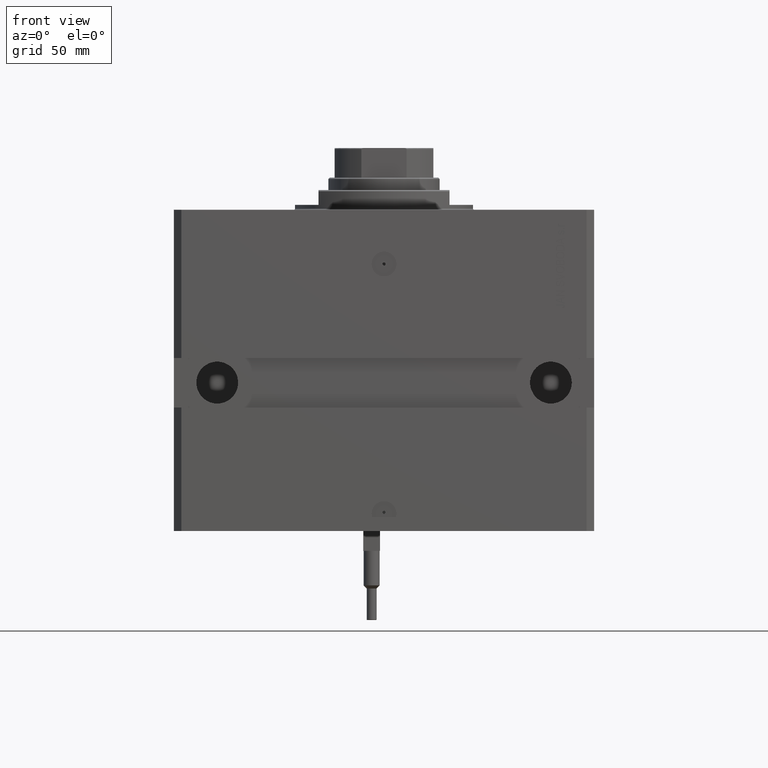
[diagram: clean part render]
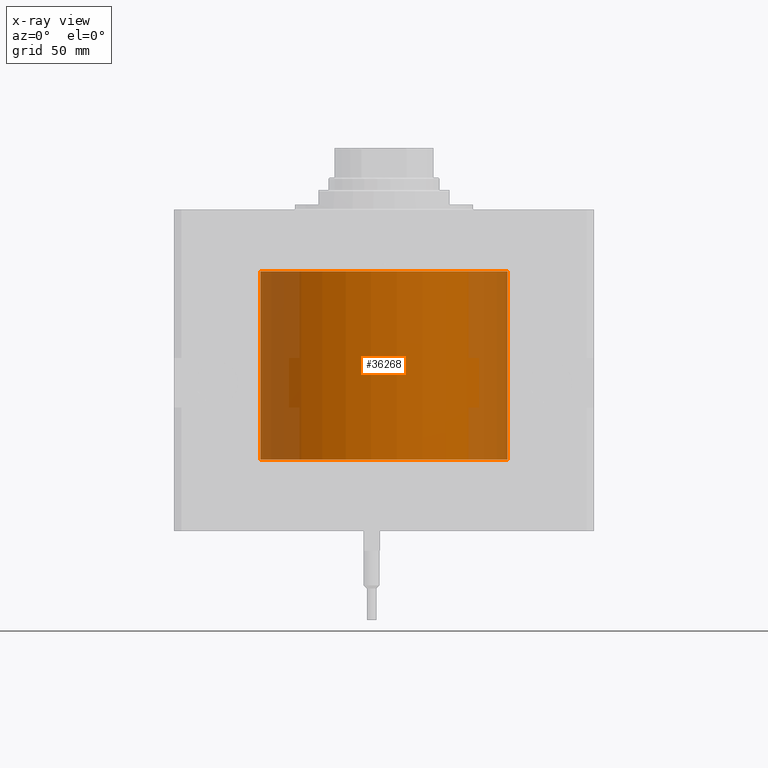
[diagram: x-ray — body ghosted, one internal face saturated and labeled with its STEP entity id]
A machine part, front view, then the same camera in x-ray: the body is ghosted and one INTERNAL B-rep face — a face not visible from any outside direction — is saturated and labeled: STEP entity #36268.
In plain terms, the highlighted cylindrical surface (partial cylindrical patch) has radius 50 mm, axis along (0, 0, 1).
Its self-contained STEP definition (entity closure, byte-faithful):
#328 = CARTESIAN_POINT ( 'NONE',  ( -50.00000000000000000, 6.123233995736764507E-15, -24.99999999999999289 ) ) ;
#1113 = FACE_OUTER_BOUND ( 'NONE', #17800, .T. ) ;
#1618 = CARTESIAN_POINT ( 'NONE',  ( 0.000000000000000000, 0.000000000000000000, -101.0999999999999943 ) ) ;
#1834 = VERTEX_POINT ( 'NONE', #45800 ) ;
#6618 = ORIENTED_EDGE ( 'NONE', *, *, #40189, .T. ) ;
#7598 = CARTESIAN_POINT ( 'NONE',  ( 0.000000000000000000, 0.000000000000000000, -101.0999999999999943 ) ) ;
#7639 = CIRCLE ( 'NONE', #13234, 50.00000000000000000 ) ;
#11799 = DIRECTION ( 'NONE',  ( 1.000000000000000000, 0.000000000000000000, 0.000000000000000000 ) ) ;
#13159 = VERTEX_POINT ( 'NONE', #22429 ) ;
#13234 = AXIS2_PLACEMENT_3D ( 'NONE', #7598, #22801, #28247 ) ;
#16775 = DIRECTION ( 'NONE',  ( -0.000000000000000000, -0.000000000000000000, 1.000000000000000000 ) ) ;
#17013 = LINE ( 'NONE', #35705, #37988 ) ;
#17551 = ORIENTED_EDGE ( 'NONE', *, *, #31794, .F. ) ;
#17800 = EDGE_LOOP ( 'NONE', ( #17551, #6618, #48988, #42524 ) ) ;
#18413 = LINE ( 'NONE', #41318, #26970 ) ;
#21400 = EDGE_CURVE ( 'NONE', #31242, #13159, #34437, .T. ) ;
#22429 = CARTESIAN_POINT ( 'NONE',  ( 50.00000000000000000, 0.000000000000000000, -24.99999999999999289 ) ) ;
#22801 = DIRECTION ( 'NONE',  ( 0.000000000000000000, 0.000000000000000000, 1.000000000000000000 ) ) ;
#24134 = DIRECTION ( 'NONE',  ( 1.000000000000000000, 0.000000000000000000, 0.000000000000000000 ) ) ;
#26891 = CARTESIAN_POINT ( 'NONE',  ( 50.00000000000000000, 0.000000000000000000, -101.0999999999999943 ) ) ;
#26970 = VECTOR ( 'NONE', #38316, 1000.000000000000000 ) ;
#28105 = CARTESIAN_POINT ( 'NONE',  ( 0.000000000000000000, 0.000000000000000000, -24.99999999999999289 ) ) ;
#28247 = DIRECTION ( 'NONE',  ( 1.000000000000000000, 0.000000000000000000, 0.000000000000000000 ) ) ;
#28870 = AXIS2_PLACEMENT_3D ( 'NONE', #28105, #35838, #24134 ) ;
#31242 = VERTEX_POINT ( 'NONE', #328 ) ;
#31794 = EDGE_CURVE ( 'NONE', #1834, #44450, #7639, .T. ) ;
#34437 = CIRCLE ( 'NONE', #28870, 50.00000000000000000 ) ;
#34838 = AXIS2_PLACEMENT_3D ( 'NONE', #1618, #16775, #11799 ) ;
#35566 = EDGE_CURVE ( 'NONE', #44450, #13159, #17013, .T. ) ;
#35705 = CARTESIAN_POINT ( 'NONE',  ( 50.00000000000000000, 0.000000000000000000, -101.0999999999999943 ) ) ;
#35712 = CYLINDRICAL_SURFACE ( 'NONE', #34838, 50.00000000000000000 ) ;
#35838 = DIRECTION ( 'NONE',  ( 0.000000000000000000, 0.000000000000000000, 1.000000000000000000 ) ) ;
#36268 = ADVANCED_FACE ( 'NONE', ( #1113 ), #35712, .F. ) ;
#37988 = VECTOR ( 'NONE', #43898, 1000.000000000000000 ) ;
#38316 = DIRECTION ( 'NONE',  ( -0.000000000000000000, -0.000000000000000000, 1.000000000000000000 ) ) ;
#40189 = EDGE_CURVE ( 'NONE', #1834, #31242, #18413, .T. ) ;
#41318 = CARTESIAN_POINT ( 'NONE',  ( -50.00000000000000000, 6.123233995736764507E-15, -101.0999999999999943 ) ) ;
#42524 = ORIENTED_EDGE ( 'NONE', *, *, #35566, .F. ) ;
#43898 = DIRECTION ( 'NONE',  ( -0.000000000000000000, -0.000000000000000000, 1.000000000000000000 ) ) ;
#44450 = VERTEX_POINT ( 'NONE', #26891 ) ;
#45800 = CARTESIAN_POINT ( 'NONE',  ( -50.00000000000000000, 6.123233995736764507E-15, -101.0999999999999943 ) ) ;
#48988 = ORIENTED_EDGE ( 'NONE', *, *, #21400, .T. ) ;